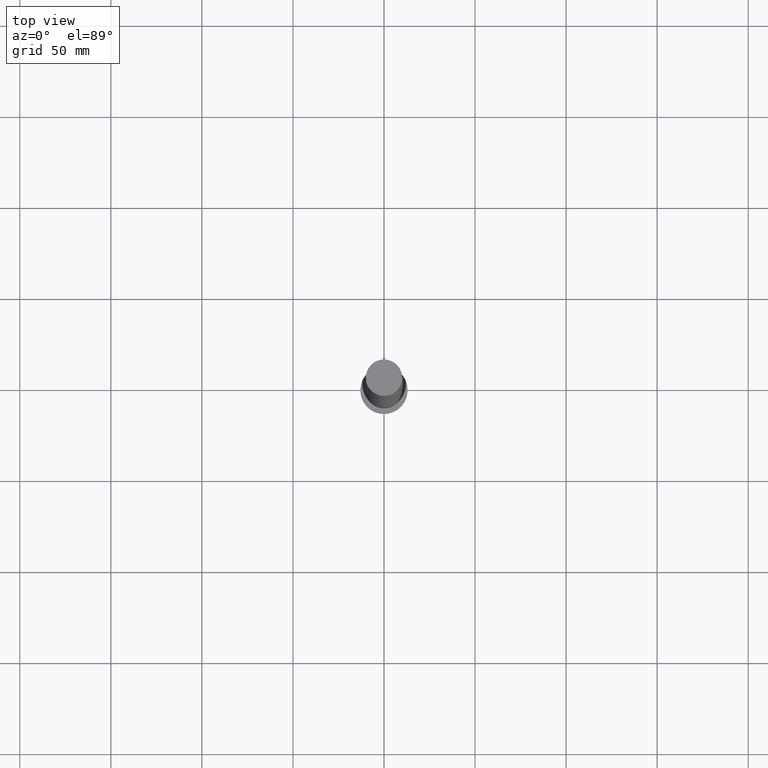
[diagram: clean part render]
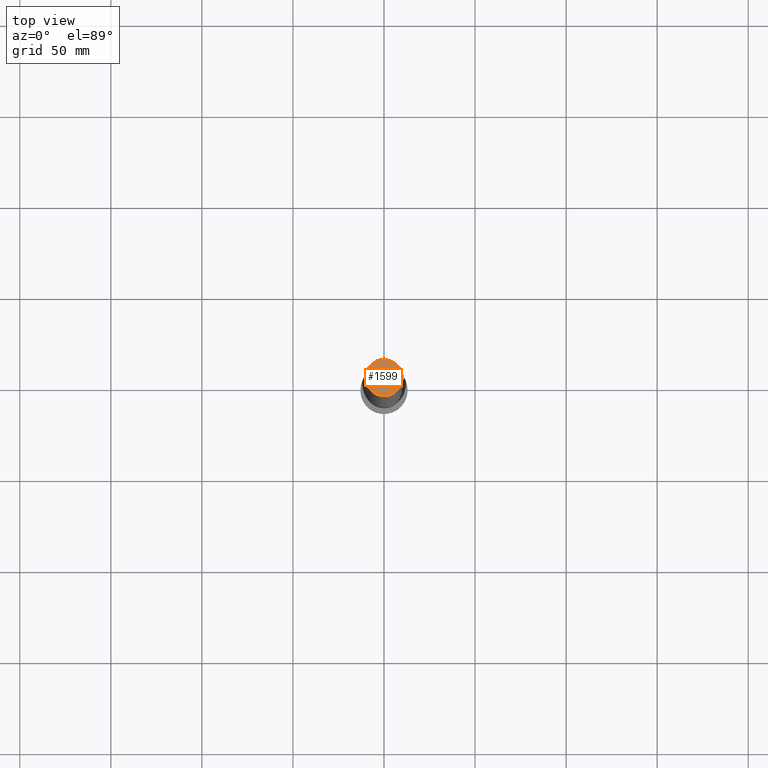
[diagram: same view with one face highlighted and labeled with its STEP entity id]
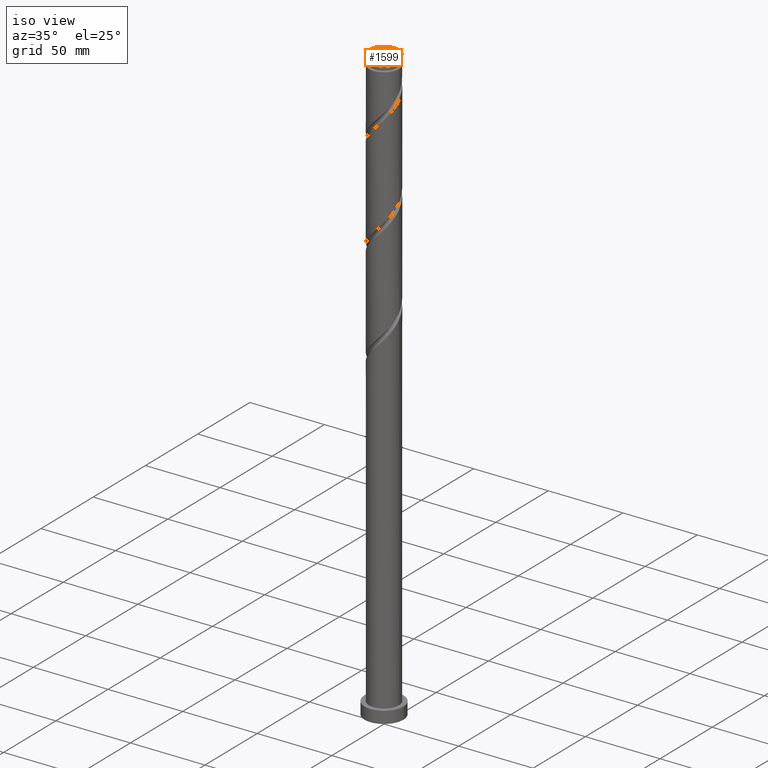
[diagram: same view with one face highlighted and labeled with its STEP entity id]
A machine part, top view. The second image highlights one B-rep face of the part: STEP entity #1599.
A second angle (iso view) of the same face is appended — the face is thin or edge-on in the first view.
In plain terms, the highlighted planar face has unit normal (0, 0, 1).
Its self-contained STEP definition (entity closure, byte-faithful):
#19 = EDGE_CURVE ( 'NONE', #1154, #1196, #1554, .T. ) ;
#73 = DIRECTION ( 'NONE',  ( 1.000000000000000000, 0.000000000000000000, 0.000000000000000000 ) ) ;
#361 = FACE_OUTER_BOUND ( 'NONE', #1301, .T. ) ;
#431 = DIRECTION ( 'NONE',  ( 1.000000000000000000, 0.000000000000000000, 0.000000000000000000 ) ) ;
#470 = AXIS2_PLACEMENT_3D ( 'NONE', #903, #1354, #431 ) ;
#610 = CIRCLE ( 'NONE', #1752, 10.00000000000000178 ) ;
#826 = CARTESIAN_POINT ( 'NONE',  ( 0.000000000000000000, 0.000000000000000000, 400.0000000000000000 ) ) ;
#903 = CARTESIAN_POINT ( 'NONE',  ( 0.000000000000000000, 0.000000000000000000, 400.0000000000000000 ) ) ;
#1105 = AXIS2_PLACEMENT_3D ( 'NONE', #1192, #1628, #1608 ) ;
#1154 = VERTEX_POINT ( 'NONE', #1917 ) ;
#1192 = CARTESIAN_POINT ( 'NONE',  ( 0.000000000000000000, 0.000000000000000000, 400.0000000000000000 ) ) ;
#1196 = VERTEX_POINT ( 'NONE', #1822 ) ;
#1301 = EDGE_LOOP ( 'NONE', ( #1918, #1797 ) ) ;
#1342 = PLANE ( 'NONE',  #1105 ) ;
#1354 = DIRECTION ( 'NONE',  ( 0.000000000000000000, 0.000000000000000000, 1.000000000000000000 ) ) ;
#1554 = CIRCLE ( 'NONE', #470, 10.00000000000000178 ) ;
#1599 = ADVANCED_FACE ( 'NONE', ( #361 ), #1342, .T. ) ;
#1605 = DIRECTION ( 'NONE',  ( 0.000000000000000000, 0.000000000000000000, 1.000000000000000000 ) ) ;
#1608 = DIRECTION ( 'NONE',  ( 1.000000000000000000, 0.000000000000000000, -0.000000000000000000 ) ) ;
#1628 = DIRECTION ( 'NONE',  ( 0.000000000000000000, 0.000000000000000000, 1.000000000000000000 ) ) ;
#1752 = AXIS2_PLACEMENT_3D ( 'NONE', #826, #1605, #73 ) ;
#1797 = ORIENTED_EDGE ( 'NONE', *, *, #19, .T. ) ;
#1822 = CARTESIAN_POINT ( 'NONE',  ( -10.00000000000000178, 0.000000000000000000, 400.0000000000000000 ) ) ;
#1917 = CARTESIAN_POINT ( 'NONE',  ( 10.00000000000000178, 1.224646799147353454E-15, 400.0000000000000000 ) ) ;
#1918 = ORIENTED_EDGE ( 'NONE', *, *, #1996, .T. ) ;
#1996 = EDGE_CURVE ( 'NONE', #1196, #1154, #610, .T. ) ;